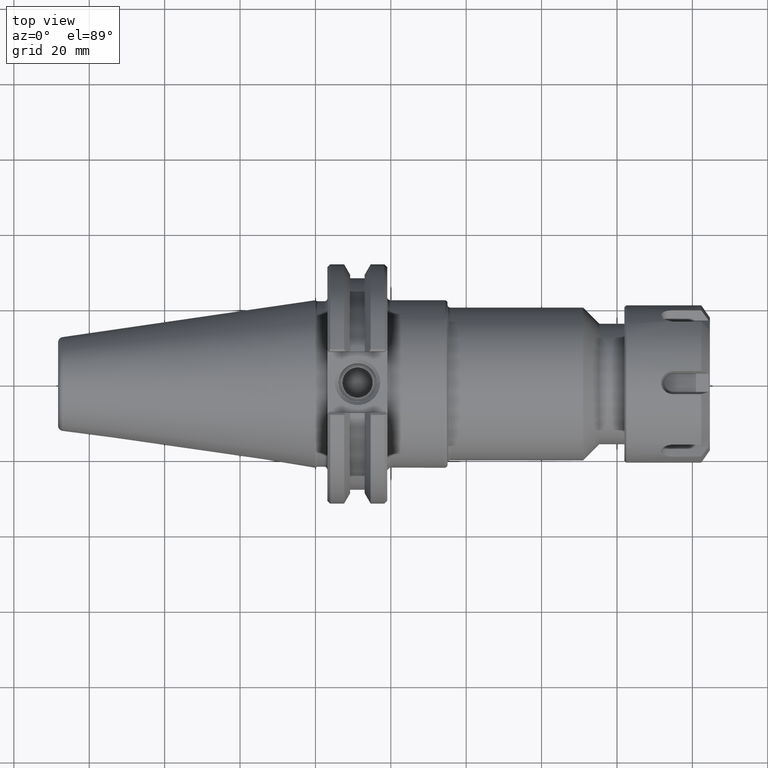
[diagram: clean part render]
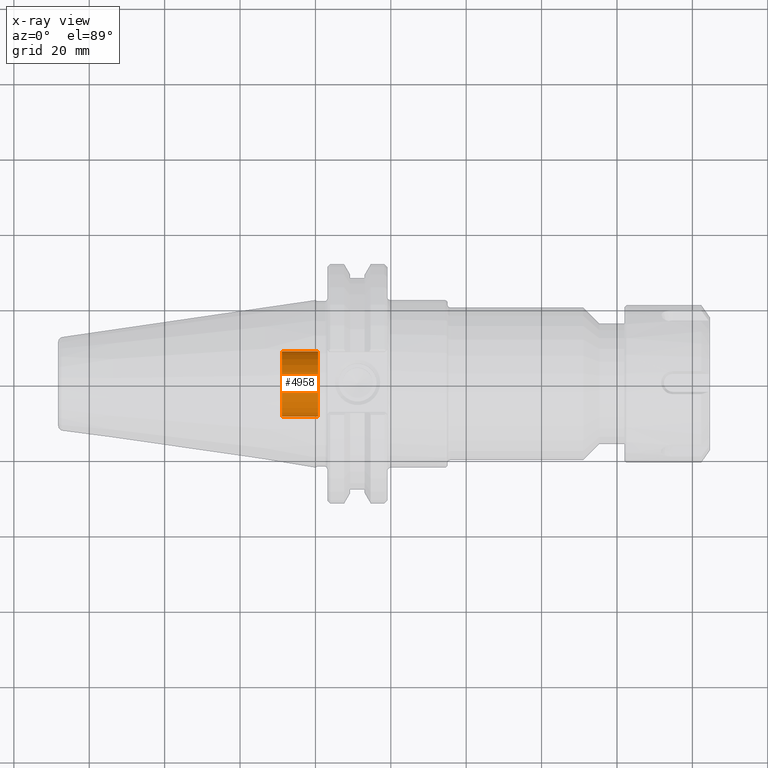
[diagram: x-ray — body ghosted, one internal face saturated and labeled with its STEP entity id]
A machine part, top view, then the same camera in x-ray: the body is ghosted and one INTERNAL B-rep face — a face not visible from any outside direction — is saturated and labeled: STEP entity #4958.
In plain terms, the highlighted cylindrical surface (bore or boss wall) has radius 8.6487 mm, axis along (-1, -0, 0).
Its self-contained STEP definition (entity closure, byte-faithful):
#4924=CARTESIAN_POINT('',(0.154400980985656,0.40308176929969,0.0));
#4925=VERTEX_POINT('',#4924);
#4926=CARTESIAN_POINT('',(0.154400980985655,0.06258176929969,0.0));
#4927=DIRECTION('',(1.0,0.0,0.0));
#4928=DIRECTION('',(0.0,1.0,0.0));
#4929=AXIS2_PLACEMENT_3D('',#4926,#4927,#4928);
#4930=CIRCLE('',#4929,0.3405);
#4931=EDGE_CURVE('',#4925,#4925,#4930,.T.);
#4939=CARTESIAN_POINT('',(0.342400980985656,0.06258176929969,0.0));
#4940=DIRECTION('',(1.0,0.0,0.0));
#4941=DIRECTION('',(0.0,1.0,0.0));
#4942=AXIS2_PLACEMENT_3D('',#4939,#4940,#4941);
#4943=CYLINDRICAL_SURFACE('',#4942,0.3405);
#4944=CARTESIAN_POINT('',(0.530400980985656,0.40308176929969,0.0));
#4945=VERTEX_POINT('',#4944);
#4946=CARTESIAN_POINT('',(0.530400980985656,0.06258176929969,0.0));
#4947=DIRECTION('',(1.0,0.0,0.0));
#4948=DIRECTION('',(0.0,1.0,0.0));
#4949=AXIS2_PLACEMENT_3D('',#4946,#4947,#4948);
#4950=CIRCLE('',#4949,0.3405);
#4951=EDGE_CURVE('',#4945,#4945,#4950,.T.);
#4952=ORIENTED_EDGE('',*,*,#4951,.F.);
#4953=EDGE_LOOP('',(#4952));
#4954=FACE_OUTER_BOUND('',#4953,.T.);
#4955=ORIENTED_EDGE('',*,*,#4931,.T.);
#4956=EDGE_LOOP('',(#4955));
#4957=FACE_BOUND('',#4956,.T.);
#4958=ADVANCED_FACE('',(#4954,#4957),#4943,.T.);